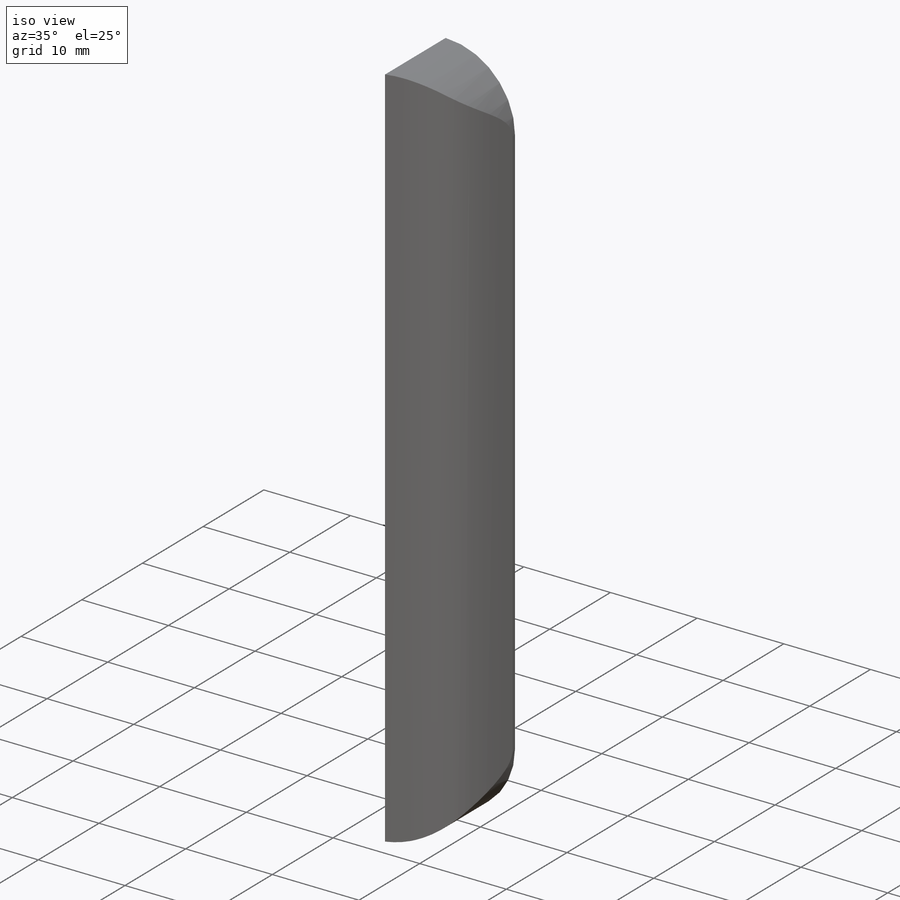
[diagram: iso view]
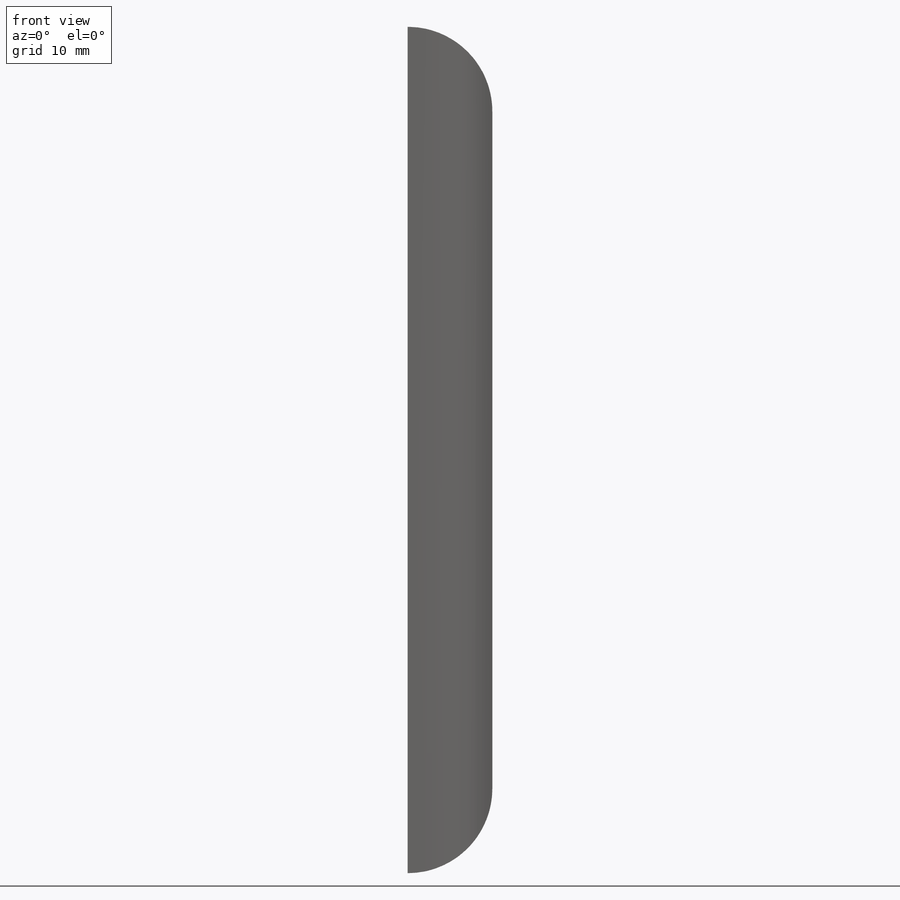
[diagram: front view]
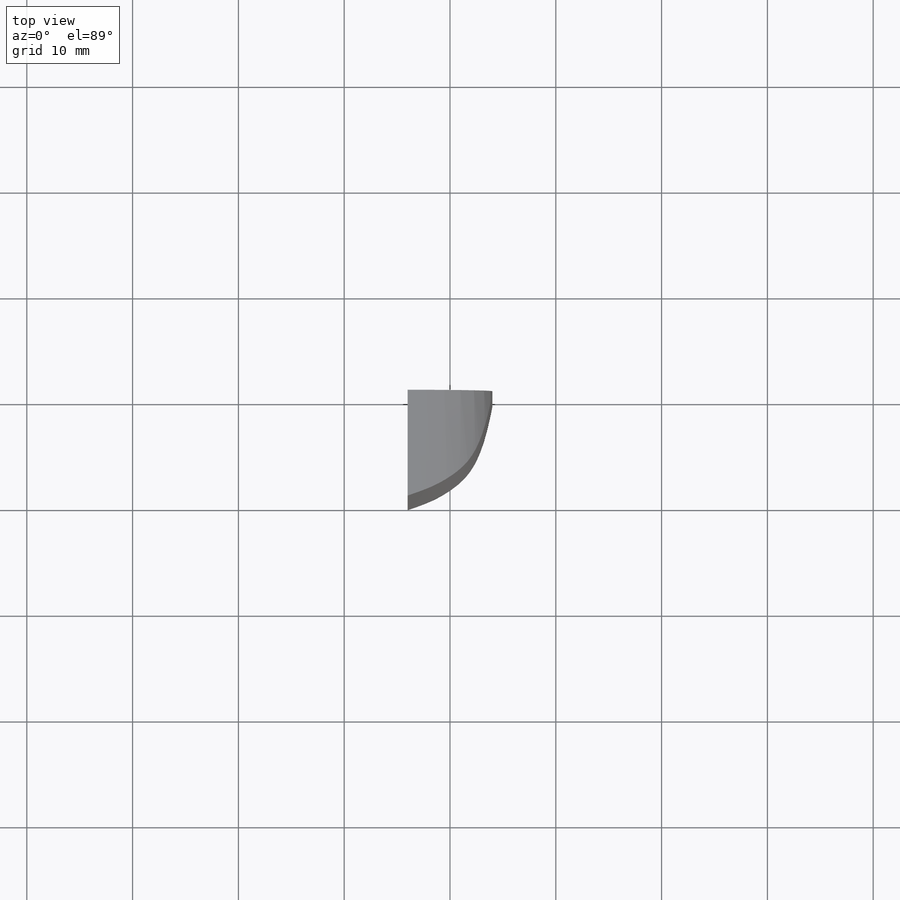
[diagram: top view]
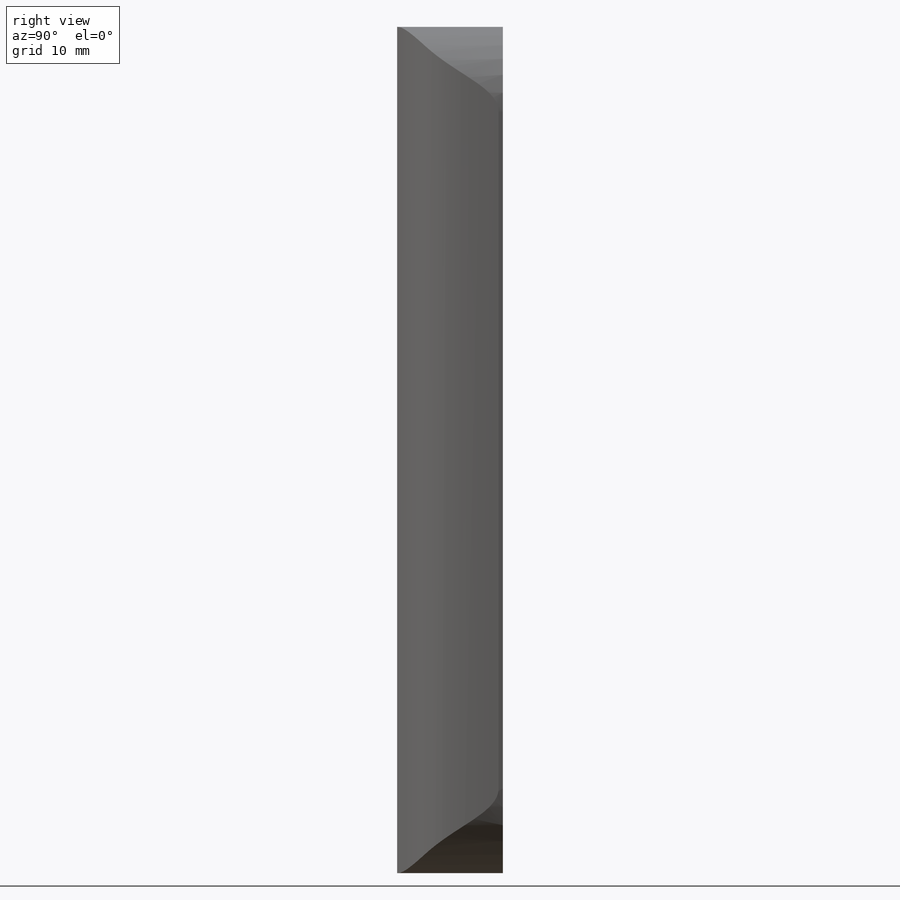
[diagram: right view]
SOLIDWORKS PART (.sldprt)
format: sldprt  version: not decoded by parser v0  size: 115,712 bytes
history: native  units: mm
features: sketch x2, extrude x2, material x1, fillet x1, shell x1 (+14 scaffold rows collapsed)
feature tree (21):
  scaffold x14  (default folders/planes/origin — collapsed)
  material  "Material <not specified>"
  sketch  "Sketch1"  dims[D1=80.0mm D2=8.0mm]
  extrude  "Extrude1"  Depth=0.4mm
  sketch  "Sketch2"  dims[c1.D1=8.0mm c2.D1=17.0deg c3.D1=10.0mm]
  extrude  "Extrude2"  [1 undecoded]
  fillet  "Fillet1"  Radius=8mm
  shell  "Shell1"  Thickness=1mm
decode coverage: 5 of 6 modeling features carry decoded parameters
note: 1 parameter value undecoded
note: suppression state not decoded; provenance and decode notes live in map.json
